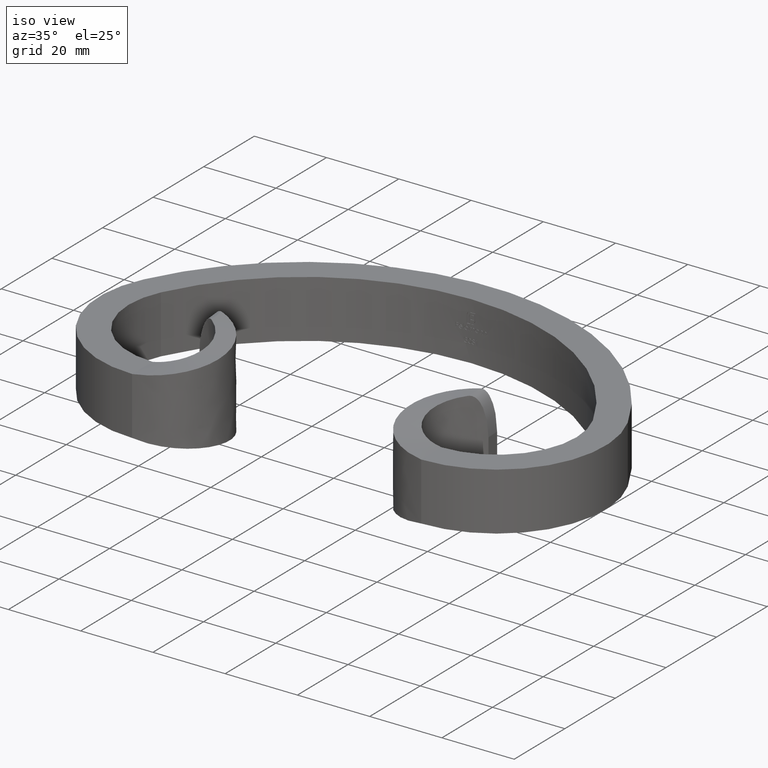
[diagram: clean part render]
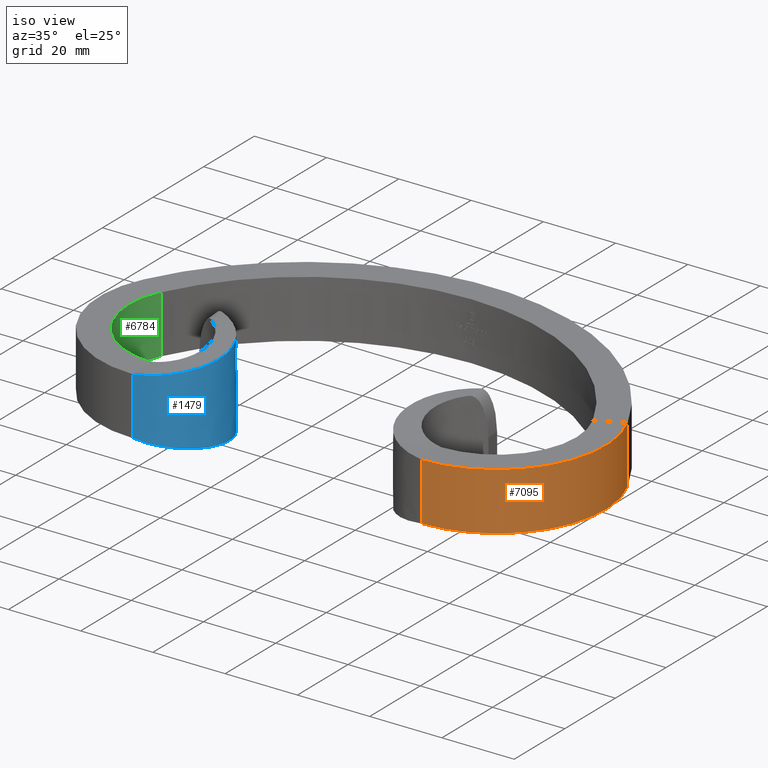
[diagram: same view with three faces highlighted in distinct colors, each labeled with its STEP entity id]
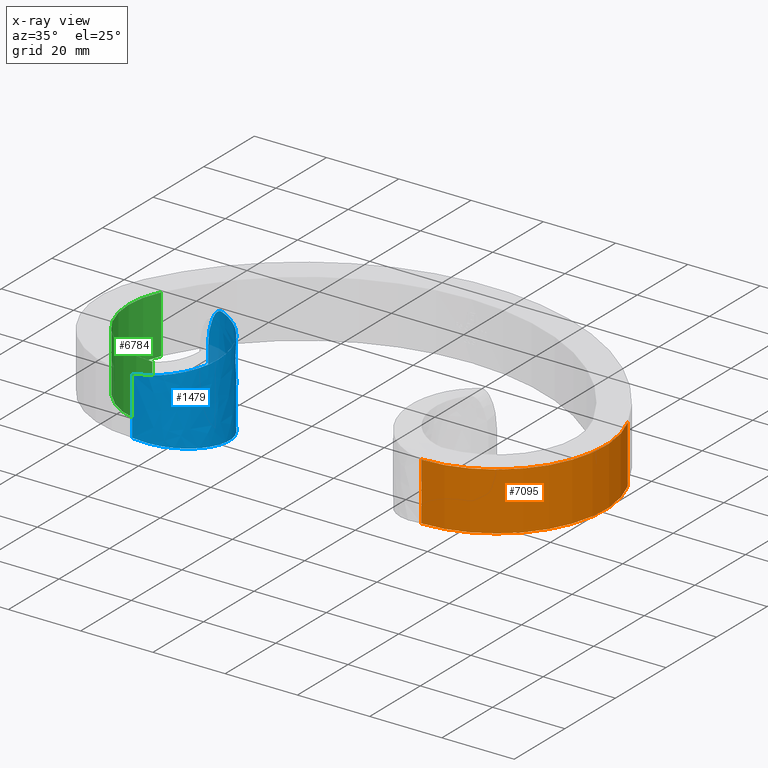
[diagram: x-ray of the same camera — body ghosted, the three highlighted faces saturated]
A machine part, iso view with three faces highlighted in distinct colors.
The next image is the same camera in x-ray (body ghosted, the three faces saturated) — at least one of them is partly hidden behind the body in this view.
Their STEP definitions:

[orange] entity #7095 — the highlighted cylindrical surface (partial cylindrical patch) has radius 30 mm, axis along (0, 0, 1).
#165 = CARTESIAN_POINT ( 'NONE',  ( 40.00000000000000000, -12.49999999999998934, -8.000000000000000000 ) ) ;
#647 = CARTESIAN_POINT ( 'NONE',  ( 40.00000000000000000, -42.49999999999998579, 8.000000000000000000 ) ) ;
#659 = EDGE_CURVE ( 'NONE', #9697, #1022, #10536, .T. ) ;
#697 = AXIS2_PLACEMENT_3D ( 'NONE', #1120, #1082, #5688 ) ;
#1022 = VERTEX_POINT ( 'NONE', #7930 ) ;
#1064 = DIRECTION ( 'NONE',  ( -0.000000000000000000, 0.000000000000000000, -1.000000000000000000 ) ) ;
#1082 = DIRECTION ( 'NONE',  ( 0.000000000000000000, 0.000000000000000000, 1.000000000000000000 ) ) ;
#1084 = DIRECTION ( 'NONE',  ( 0.000000000000000000, -1.000000000000000000, 0.000000000000000000 ) ) ;
#1120 = CARTESIAN_POINT ( 'NONE',  ( 40.00000000000000000, -12.49999999999998934, 8.000000000000000000 ) ) ;
#1778 = CYLINDRICAL_SURFACE ( 'NONE', #2584, 30.00000000000000711 ) ;
#2280 = CARTESIAN_POINT ( 'NONE',  ( 66.96629213483143417, 0.6460674157303912812, 8.000000000000000000 ) ) ;
#2584 = AXIS2_PLACEMENT_3D ( 'NONE', #10476, #3929, #7639 ) ;
#3466 = DIRECTION ( 'NONE',  ( 0.000000000000000000, 0.000000000000000000, -1.000000000000000000 ) ) ;
#3648 = VECTOR ( 'NONE', #1064, 1000.000000000000000 ) ;
#3929 = DIRECTION ( 'NONE',  ( 0.000000000000000000, 0.000000000000000000, 1.000000000000000000 ) ) ;
#4398 = CIRCLE ( 'NONE', #697, 30.00000000000000000 ) ;
#4993 = EDGE_CURVE ( 'NONE', #8564, #10380, #4398, .T. ) ;
#5571 = ORIENTED_EDGE ( 'NONE', *, *, #10774, .F. ) ;
#5688 = DIRECTION ( 'NONE',  ( 0.000000000000000000, -1.000000000000000000, 0.000000000000000000 ) ) ;
#5797 = CARTESIAN_POINT ( 'NONE',  ( 66.96629213483146259, 0.6460674157303981646, 8.000000000000000000 ) ) ;
#5848 = ORIENTED_EDGE ( 'NONE', *, *, #11000, .T. ) ;
#6629 = LINE ( 'NONE', #647, #10428 ) ;
#6748 = DIRECTION ( 'NONE',  ( 0.000000000000000000, 0.000000000000000000, 1.000000000000000000 ) ) ;
#7091 = AXIS2_PLACEMENT_3D ( 'NONE', #165, #6748, #1084 ) ;
#7095 = ADVANCED_FACE ( 'NONE', ( #9194 ), #1778, .T. ) ;
#7536 = CARTESIAN_POINT ( 'NONE',  ( 40.00000000000001421, -42.50000000000000711, -8.000000000000000000 ) ) ;
#7607 = ORIENTED_EDGE ( 'NONE', *, *, #659, .T. ) ;
#7639 = DIRECTION ( 'NONE',  ( 1.000000000000000000, 0.000000000000000000, 0.000000000000000000 ) ) ;
#7930 = CARTESIAN_POINT ( 'NONE',  ( 66.96629213483143417, 0.6460674157303912812, -8.000000000000000000 ) ) ;
#8092 = LINE ( 'NONE', #5797, #3648 ) ;
#8366 = ORIENTED_EDGE ( 'NONE', *, *, #4993, .F. ) ;
#8564 = VERTEX_POINT ( 'NONE', #9182 ) ;
#9182 = CARTESIAN_POINT ( 'NONE',  ( 40.00000000000001421, -42.50000000000000711, 8.000000000000000000 ) ) ;
#9194 = FACE_OUTER_BOUND ( 'NONE', #10834, .T. ) ;
#9697 = VERTEX_POINT ( 'NONE', #7536 ) ;
#10380 = VERTEX_POINT ( 'NONE', #2280 ) ;
#10428 = VECTOR ( 'NONE', #3466, 1000.000000000000000 ) ;
#10476 = CARTESIAN_POINT ( 'NONE',  ( 40.00000000000000000, -12.49999999999998934, 0.000000000000000000 ) ) ;
#10536 = CIRCLE ( 'NONE', #7091, 30.00000000000000000 ) ;
#10774 = EDGE_CURVE ( 'NONE', #10380, #1022, #8092, .T. ) ;
#10834 = EDGE_LOOP ( 'NONE', ( #7607, #5571, #8366, #5848 ) ) ;
#11000 = EDGE_CURVE ( 'NONE', #8564, #9697, #6629, .T. ) ;

[blue] entity #1479 — the highlighted face is a freeform B-spline surface patch.
#107 = CARTESIAN_POINT ( 'NONE',  ( -39.27207681396834005, -12.54270505401797564, 9.165432682719297119 ) ) ;
#115 = ORIENTED_EDGE ( 'NONE', *, *, #10227, .F. ) ;
#154 = CARTESIAN_POINT ( 'NONE',  ( -36.04298409383513047, -42.19489507003635964, 8.503882915511125518 ) ) ;
#156 = CARTESIAN_POINT ( 'NONE',  ( -32.38241363854125154, -40.60731167138313680, 9.004700799622668228 ) ) ;
#233 = CARTESIAN_POINT ( 'NONE',  ( -39.01710257286399042, -12.55518140007928096, 13.87492381433971111 ) ) ;
#273 = CARTESIAN_POINT ( 'NONE',  ( -38.68746648217916118, -42.39879736232403928, 8.167136860540608723 ) ) ;
#353 = ORIENTED_EDGE ( 'NONE', *, *, #12014, .T. ) ;
#610 = CARTESIAN_POINT ( 'NONE',  ( -37.08296777396621025, -12.78451269173868354, -13.08431619962141923 ) ) ;
#625 = CARTESIAN_POINT ( 'NONE',  ( -39.99999999999997158, -12.50000000000004974, -3.545507529709388983 ) ) ;
#652 = VERTEX_POINT ( 'NONE', #8571 ) ;
#708 = ORIENTED_EDGE ( 'NONE', *, *, #1569, .F. ) ;
#821 = CARTESIAN_POINT ( 'NONE',  ( -39.22967689592027796, -12.54542734868240750, -9.312656470867501923 ) ) ;
#918 = CARTESIAN_POINT ( 'NONE',  ( -39.08791007744836321, -12.55454230699907292, 9.803116106269754937 ) ) ;
#958 = CARTESIAN_POINT ( 'NONE',  ( -39.84310123269413850, -12.50882673381324928, 6.228628696777295914 ) ) ;
#964 = FACE_OUTER_BOUND ( 'NONE', #3219, .T. ) ;
#990 = CARTESIAN_POINT ( 'NONE',  ( -37.54936792720159389, -12.70850219665680925, 12.66884928609257699 ) ) ;
#995 = CARTESIAN_POINT ( 'NONE',  ( -25.19733021883143920, -24.53388138580784528, 11.37779541540063377 ) ) ;
#1074 = CARTESIAN_POINT ( 'NONE',  ( -37.20958304122586213, -12.76213995514962818, 12.98698473583742086 ) ) ;
#1077 = CARTESIAN_POINT ( 'NONE',  ( -36.04298409383513047, -42.19489507003635964, -8.503882915511125518 ) ) ;
#1081 = CARTESIAN_POINT ( 'NONE',  ( -39.99999999999999289, -42.50000000000000711, 8.000000000000000000 ) ) ;
#1117 = CARTESIAN_POINT ( 'NONE',  ( -38.68746648217916118, -42.39879736232403928, -8.167136860540608723 ) ) ;
#1370 = CARTESIAN_POINT ( 'NONE',  ( -37.81987464068800620, -12.67199776784917553, -12.34924817626349380 ) ) ;
#1463 = CARTESIAN_POINT ( 'NONE',  ( -31.62695320964726520, -14.93357274144184998, -12.87747321097610431 ) ) ;
#1479 = ADVANCED_FACE ( 'NONE', ( #964 ), #4584, .T. ) ;
#1569 = EDGE_CURVE ( 'NONE', #9248, #5418, #12149, .T. ) ;
#1613 = CARTESIAN_POINT ( 'NONE',  ( -39.09332678598790523, -12.55442119161753389, -9.756807381089018349 ) ) ;
#1674 = DIRECTION ( 'NONE',  ( 0.000000000000000000, 0.000000000000000000, -1.000000000000000000 ) ) ;
#1747 = CARTESIAN_POINT ( 'NONE',  ( -39.72620574013895123, -12.51546731632451070, -7.075722399542910601 ) ) ;
#1766 = CARTESIAN_POINT ( 'NONE',  ( -38.12320101079868095, -12.63712534223304296, 11.90576084904062526 ) ) ;
#1847 = CARTESIAN_POINT ( 'NONE',  ( -39.25254712213869368, -12.54395475111382119, 9.233830524082700109 ) ) ;
#1882 = CARTESIAN_POINT ( 'NONE',  ( -39.82484287883275442, -12.50985915749215316, 6.377425288388678837 ) ) ;
#1929 = CARTESIAN_POINT ( 'NONE',  ( -26.84580894462402512, -35.05877054887470479, 10.00383071811035052 ) ) ;
#1958 = LINE ( 'NONE', #11962, #4142 ) ;
#1966 = CARTESIAN_POINT ( 'NONE',  ( -32.38241363854125154, -40.60731167138313680, -9.004700799622668228 ) ) ;
#1999 = CARTESIAN_POINT ( 'NONE',  ( -37.14300965967410662, -12.77375008803218925, 13.03940881678186159 ) ) ;
#2479 = CARTESIAN_POINT ( 'NONE',  ( -37.03467687075512060, -12.79336771986923260, -13.11887199366248247 ) ) ;
#2567 = CARTESIAN_POINT ( 'NONE',  ( -38.52089944301228996, -12.59781801681586799, -11.21398455636612823 ) ) ;
#2610 = CARTESIAN_POINT ( 'NONE',  ( -38.08384311854948834, -12.64139012473959767, -11.96762546062084098 ) ) ;
#2656 = CARTESIAN_POINT ( 'NONE',  ( -39.99999999999997158, -12.50000000000004974, -3.545507529709388983 ) ) ;
#2812 = CARTESIAN_POINT ( 'NONE',  ( -38.19610040620212033, -12.62942142424697067, 11.78767851683378964 ) ) ;
#2884 = CARTESIAN_POINT ( 'NONE',  ( -38.62716495409629403, -12.58928020137935810, 10.96860529115071259 ) ) ;
#2887 = CARTESIAN_POINT ( 'NONE',  ( -31.62695320964726520, -14.93357274144184998, -12.87747321097610431 ) ) ;
#2922 = CARTESIAN_POINT ( 'NONE',  ( -35.79395304520880927, -13.09240974463900642, 13.45737794553265232 ) ) ;
#2925 = CARTESIAN_POINT ( 'NONE',  ( -29.25184079106775314, -38.21318353949611435, 9.503446292758994218 ) ) ;
#2962 = CARTESIAN_POINT ( 'NONE',  ( -37.17289245020715782, -12.76849885976178101, 13.01620609464272249 ) ) ;
#3007 = CARTESIAN_POINT ( 'NONE',  ( -31.62695320964726520, -14.93357274144184998, 12.87747321097610431 ) ) ;
#3046 = CARTESIAN_POINT ( 'NONE',  ( -35.79395304520880927, -13.09240974463900642, 13.45737794553265232 ) ) ;
#3219 = EDGE_LOOP ( 'NONE', ( #353, #6838, #708, #12024, #115, #8425 ) ) ;
#3317 = CARTESIAN_POINT ( 'NONE',  ( -38.68746648217916118, -42.39879736232403928, -8.167136860540608723 ) ) ;
#3321 = EDGE_CURVE ( 'NONE', #11998, #3361, #1958, .T. ) ;
#3361 = VERTEX_POINT ( 'NONE', #5678 ) ;
#3402 = CARTESIAN_POINT ( 'NONE',  ( -25.33521997203124698, -31.39402598544253209, -10.50442781793251612 ) ) ;
#3421 = B_SPLINE_CURVE_WITH_KNOTS ( 'NONE', 3,
 ( #1081, #273, #8643, #156, #3922, #6828, #5898, #10506, #7827, #5769, #9622, #4959, #6743, #10545, #8603, #3046 ),
 .UNSPECIFIED., .F., .F.,
 ( 4, 1, 1, 1, 1, 1, 1, 1, 1, 1, 1, 1, 1, 4 ),
 ( 0.000000000000000000, 0.07643944691584819706, 0.1540096069160411529, 0.2330094117785480312, 0.3131500124201943014, 0.3945330707136094905, 0.4773147407482481452, 0.5401686603511797191, 0.6038891507428142402, 0.6681790321241890540, 0.7333217182116463784, 0.7990563422923470105, 0.8656197462576271651, 0.9027524825840476108 ),
 .UNSPECIFIED. ) ;
#3534 = CARTESIAN_POINT ( 'NONE',  ( -39.99999999999997158, -12.50000000000004974, 3.545507528706613787 ) ) ;
#3557 = CARTESIAN_POINT ( 'NONE',  ( -39.16489303077967321, -12.54965441920337810, -9.528904954137521699 ) ) ;
#3663 = CARTESIAN_POINT ( 'NONE',  ( -39.39476787363866350, -12.53502907559230550, 8.706968697925150380 ) ) ;
#3701 = CARTESIAN_POINT ( 'NONE',  ( -39.29905651576576275, -12.54099010925896529, 9.069264073676590598 ) ) ;
#3737 = CARTESIAN_POINT ( 'NONE',  ( -37.28264335321186707, -12.74977236196472852, 12.92630355501677286 ) ) ;
#3814 = CARTESIAN_POINT ( 'NONE',  ( -38.37130600904811928, -12.61208654868661938, 11.48021962690854281 ) ) ;
#3919 = CARTESIAN_POINT ( 'NONE',  ( -40.00000000000001421, -42.50000000000000711, -8.000000000000000000 ) ) ;
#3922 = CARTESIAN_POINT ( 'NONE',  ( -29.25184079106775314, -38.21318353949611435, 9.503446292758994218 ) ) ;
#4047 = B_SPLINE_CURVE_WITH_KNOTS ( 'NONE', 3,
 ( #8884, #3317, #9942, #11917, #10908, #9088, #3402, #11796, #8959, #4238, #11837, #9044, #1463, #7284, #5251, #6230 ),
 .UNSPECIFIED., .F., .F.,
 ( 4, 1, 1, 1, 1, 1, 1, 1, 1, 1, 1, 1, 1, 4 ),
 ( 0.000000000000000000, 0.07643944691584819706, 0.1540096069160411529, 0.2330094117785480312, 0.3131500124201943014, 0.3945330707136094905, 0.4773147407482481452, 0.5401686603511797191, 0.6038891507428142402, 0.6681790321241889430, 0.7333217182116463784, 0.7990563422923470105, 0.8656197462576271651, 0.9027524826645606515 ),
 .UNSPECIFIED. ) ;
#4142 = VECTOR ( 'NONE', #1674, 1000.000000000000000 ) ;
#4238 = CARTESIAN_POINT ( 'NONE',  ( -26.05590940528936272, -21.71262454500754302, -11.75140612995421208 ) ) ;
#4285 = B_SPLINE_CURVE_WITH_KNOTS ( 'NONE', 3,
 ( #3534, #4450, #10384, #4741, #11331, #958, #9394, #1882, #4625, #8559, #11219, #10314, #5680, #3663, #6665, #3701, #107, #7627, #1847, #9500, #11362, #918, #8485, #2884, #4664, #3814, #8521, #2812, #11256, #1766, #10420, #9428, #6700, #8401, #9349, #6584, #990, #4583, #5562, #3737, #1074, #2962, #11478, #11398, #1999, #9695, #9536, #2922 ),
 .UNSPECIFIED., .F., .F.,
 ( 4, 1, 1, 1, 1, 2, 2, 2, 2, 1, 1, 1, 1, 2, 2, 2, 2, 1, 1, 1, 1, 1, 2, 2, 2, 2, 1, 1, 1, 2, 2, 4 ),
 ( 0.000000000000000000, 0.1249999999999713840, 0.1874999999999571176, 0.2187499999999502065, 0.2343749999999466260, 0.2421874999999447109, 0.2499999999999428235, 0.3749999999999078515, 0.4374999999998903655, 0.4687499999998818168, 0.4843749999998773204, 0.4921874999998753220, 0.4960937499998745448, 0.4980468749998736566, 0.4999999999998727684, 0.6249999999998553379, 0.6874999999998463451, 0.7187499999998421263, 0.7343749999998395728, 0.7421874999998382405, 0.7460937499998377964, 0.7480468749998377964, 0.7490234374998381295, 0.7499999999998383515, 0.8124999999998812061, 0.8437499999999020783, 0.8593749999999132916, 0.8671874999999182876, 0.8710937499999201750, 0.8730468749999211742, 0.8749999999999221734, 1.000000000000000000 ),
 .UNSPECIFIED. ) ;
#4366 = B_SPLINE_CURVE_WITH_KNOTS ( 'NONE', 3,
 ( #5189, #5274, #5148, #7140, #11858, #6252, #2479, #610, #7060, #7225, #8078, #10973, #5313, #6093, #1370, #8006, #7104, #8380, #11058, #11105, #2610, #11944, #11145, #2567, #5356, #7312, #11013, #1613, #3557, #9282, #5448, #4563, #821, #6296, #7450, #5491, #12028, #6476, #1747, #7268, #10253, #12071, #6431, #10164, #6346, #8238, #2656 ),
 .UNSPECIFIED., .F., .F.,
 ( 4, 2, 1, 1, 1, 1, 2, 2, 2, 1, 1, 1, 1, 1, 2, 2, 2, 2, 1, 1, 1, 1, 2, 2, 2, 2, 1, 1, 2, 2, 4 ),
 ( 0.000000000000000000, 0.06249999999997299382, 0.09374999999995943523, 0.1093749999999525241, 0.1171874999999496930, 0.1210937499999489436, 0.1230468749999485828, 0.1249999999999482359, 0.1874999999999284184, 0.2187499999999185096, 0.2343749999999134026, 0.2421874999999114875, 0.2460937499999111266, 0.2480468749999112099, 0.2490234374999114042, 0.2499999999999116262, 0.3749999999999341083, 0.4374999999999452105, 0.4687499999999510947, 0.4843749999999540368, 0.4921874999999553135, 0.4960937499999554801, 0.4980468749999553690, 0.4999999999999552580, 0.6249999999999664713, 0.6874999999999723554, 0.7187499999999754641, 0.7343749999999770184, 0.7421874999999775735, 0.7499999999999782396, 1.000000000000000000 ),
 .UNSPECIFIED. ) ;
#4450 = CARTESIAN_POINT ( 'NONE',  ( -39.99999999999997868, -12.50000000000005151, 4.032928411699945315 ) ) ;
#4563 = CARTESIAN_POINT ( 'NONE',  ( -39.22474835846300323, -12.54574620258149587, -9.329442633327010626 ) ) ;
#4583 = CARTESIAN_POINT ( 'NONE',  ( -37.46810401687444170, -12.72042704787037870, 12.75359946062644845 ) ) ;
#4584 = B_SPLINE_SURFACE_WITH_KNOTS ( 'NONE', 1, 3, ( 
 ( #4830, #10543, #154, #9465, #2925, #1929, #6782, #10426, #995, #9539, #4870, #10503, #3007, #11438, #6740, #233, #9620 ),
 ( #3919, #1117, #1077, #1966, #7663, #8640, #4746, #11481, #5807, #5850, #7704, #6827, #2887, #5767, #11333, #9504, #7599 ) ),
 .UNSPECIFIED., .F., .F., .F.,
 ( 2, 2 ),
 ( 4, 1, 1, 1, 1, 1, 1, 1, 1, 1, 1, 1, 1, 1, 4 ),
 ( 0.000000000000000000, 1.000000000000000000 ),
 ( 0.000000000000000000, 0.07643944691584819706, 0.1540096069160411529, 0.2330094117785480312, 0.3131500124201943014, 0.3945330707136094905, 0.4773147407482481452, 0.5401686603511797191, 0.6038891507428142402, 0.6681790321241890540, 0.7333217182116463784, 0.7990563422923470105, 0.8656197462576271651, 0.9328260272710567902, 1.000000000000000000 ),
 .UNSPECIFIED. ) ;
#4625 = CARTESIAN_POINT ( 'NONE',  ( -39.82132681482517000, -12.51005811880680518, 6.405360764965210230 ) ) ;
#4664 = CARTESIAN_POINT ( 'NONE',  ( -38.52734701551829488, -12.59772658353637809, 11.18035873388561718 ) ) ;
#4741 = CARTESIAN_POINT ( 'NONE',  ( -39.91054606329805665, -12.50502421543277443, 5.601592000936509663 ) ) ;
#4746 = CARTESIAN_POINT ( 'NONE',  ( -25.33521997203124698, -31.39402598544253209, -10.50442781793251612 ) ) ;
#4830 = CARTESIAN_POINT ( 'NONE',  ( -40.00000000000001421, -42.50000000000000711, 8.000000000000000000 ) ) ;
#4870 = CARTESIAN_POINT ( 'NONE',  ( -27.45806106993893536, -19.09484801626853567, 12.12772151566155543 ) ) ;
#4959 = CARTESIAN_POINT ( 'NONE',  ( -29.33266354703817314, -16.81741441169711138, 12.50148243620112432 ) ) ;
#5077 = DIRECTION ( 'NONE',  ( 0.000000000000000000, 0.000000000000000000, -1.000000000000000000 ) ) ;
#5148 = CARTESIAN_POINT ( 'NONE',  ( -36.24297803145210395, -12.96663927766264912, -13.46865966283492533 ) ) ;
#5189 = CARTESIAN_POINT ( 'NONE',  ( -35.79395304840073067, -13.09240974387990519, -13.45737794795262765 ) ) ;
#5251 = CARTESIAN_POINT ( 'NONE',  ( -35.27376873677720681, -13.24552783197744610, -13.38836232621635425 ) ) ;
#5274 = CARTESIAN_POINT ( 'NONE',  ( -36.01891194307402344, -13.02619226069722558, -13.48720801419950810 ) ) ;
#5313 = CARTESIAN_POINT ( 'NONE',  ( -37.46223298166179916, -12.72064496283585200, -12.76730743732041873 ) ) ;
#5356 = CARTESIAN_POINT ( 'NONE',  ( -38.80757764989092351, -12.57488187157228765, -10.54789356168117997 ) ) ;
#5418 = VERTEX_POINT ( 'NONE', #625 ) ;
#5448 = CARTESIAN_POINT ( 'NONE',  ( -39.21734304177829955, -12.54622589925154408, -9.354587291487659328 ) ) ;
#5491 = CARTESIAN_POINT ( 'NONE',  ( -39.47541436111473701, -12.53007725156073704, -8.399073866821213485 ) ) ;
#5562 = CARTESIAN_POINT ( 'NONE',  ( -37.34471276807575890, -12.73975094189840007, 12.87044823233538260 ) ) ;
#5678 = CARTESIAN_POINT ( 'NONE',  ( -40.00000000000001421, -42.50000000000000711, -8.000000000000000000 ) ) ;
#5680 = CARTESIAN_POINT ( 'NONE',  ( -39.47790584728439001, -12.52996484017938883, 8.366674763841714935 ) ) ;
#5758 = EDGE_CURVE ( 'NONE', #652, #5418, #4366, .T. ) ;
#5767 = CARTESIAN_POINT ( 'NONE',  ( -34.23629465016007600, -13.55430790121540419, -13.25192717049105617 ) ) ;
#5769 = CARTESIAN_POINT ( 'NONE',  ( -26.05590940528936272, -21.71262454500754302, 11.75140612995420675 ) ) ;
#5807 = CARTESIAN_POINT ( 'NONE',  ( -25.19733021883143920, -24.53388138580784528, -11.37779541540063555 ) ) ;
#5850 = CARTESIAN_POINT ( 'NONE',  ( -26.05590940528936272, -21.71262454500754302, -11.75140612995421208 ) ) ;
#5898 = CARTESIAN_POINT ( 'NONE',  ( -25.33521997203124698, -31.39402598544253209, 10.50442781793250546 ) ) ;
#6093 = CARTESIAN_POINT ( 'NONE',  ( -37.70165741727253561, -12.68739557918303085, -12.49541238195640780 ) ) ;
#6230 = CARTESIAN_POINT ( 'NONE',  ( -35.79395304840073067, -13.09240974387990519, -13.45737794795262765 ) ) ;
#6252 = CARTESIAN_POINT ( 'NONE',  ( -36.93798888738058395, -12.81163643882692149, -13.18387473200895954 ) ) ;
#6296 = CARTESIAN_POINT ( 'NONE',  ( -39.23258949070273616, -12.54523919297762546, -9.302701216793883177 ) ) ;
#6346 = CARTESIAN_POINT ( 'NONE',  ( -39.93863496977117222, -12.50341542069381262, -5.493065830738886213 ) ) ;
#6421 = CARTESIAN_POINT ( 'NONE',  ( -35.79395304520880927, -13.09240974463900642, 13.45737794553265232 ) ) ;
#6431 = CARTESIAN_POINT ( 'NONE',  ( -39.80767790698469355, -12.51083109698739193, -6.511126166072076060 ) ) ;
#6476 = CARTESIAN_POINT ( 'NONE',  ( -39.66530259384889945, -12.51896180625985622, -7.444922996221879252 ) ) ;
#6584 = CARTESIAN_POINT ( 'NONE',  ( -37.79009997743666815, -12.67520410249578156, 12.39393724077262782 ) ) ;
#6665 = CARTESIAN_POINT ( 'NONE',  ( -39.35175669208071270, -12.53767745020807389, 8.875497403616405379 ) ) ;
#6700 = CARTESIAN_POINT ( 'NONE',  ( -38.10218519521033187, -12.63939293393537611, 11.93896470527093001 ) ) ;
#6740 = CARTESIAN_POINT ( 'NONE',  ( -37.05083497999392250, -12.66557074052261100, 13.62471128583585589 ) ) ;
#6743 = CARTESIAN_POINT ( 'NONE',  ( -31.62695320964726520, -14.93357274144184998, 12.87747321097610431 ) ) ;
#6782 = CARTESIAN_POINT ( 'NONE',  ( -25.33521997203124698, -31.39402598544253209, 10.50442781793250546 ) ) ;
#6827 = CARTESIAN_POINT ( 'NONE',  ( -29.33266354703817314, -16.81741441169711138, -12.50148243620112964 ) ) ;
#6828 = CARTESIAN_POINT ( 'NONE',  ( -26.84580894462402512, -35.05877054887470479, 10.00383071811035052 ) ) ;
#6838 = ORIENTED_EDGE ( 'NONE', *, *, #5758, .T. ) ;
#6888 = VECTOR ( 'NONE', #5077, 1000.000000000000000 ) ;
#7060 = CARTESIAN_POINT ( 'NONE',  ( -37.10365237163338037, -12.78077726549475024, -13.06906585758433437 ) ) ;
#7104 = CARTESIAN_POINT ( 'NONE',  ( -38.02207724641301212, -12.64823826266464835, -12.06200927340752926 ) ) ;
#7140 = CARTESIAN_POINT ( 'NONE',  ( -36.57740238471313887, -12.88745993982160698, -13.36686799825164051 ) ) ;
#7225 = CARTESIAN_POINT ( 'NONE',  ( -37.11743952312761508, -12.77830004844230238, -13.05880097150541808 ) ) ;
#7268 = CARTESIAN_POINT ( 'NONE',  ( -39.75518447722687654, -12.51381228913597887, -6.889504974275915572 ) ) ;
#7284 = CARTESIAN_POINT ( 'NONE',  ( -33.84295905467941878, -13.76222011570481563, -13.19548148313901592 ) ) ;
#7312 = CARTESIAN_POINT ( 'NONE',  ( -38.89892911420402299, -12.56807852146068605, -10.31403360396063640 ) ) ;
#7450 = CARTESIAN_POINT ( 'NONE',  ( -39.36281253742459540, -12.53683558126588515, -8.856444165989227457 ) ) ;
#7459 = EDGE_CURVE ( 'NONE', #9248, #8211, #4285, .T. ) ;
#7599 = CARTESIAN_POINT ( 'NONE',  ( -39.99999999999997158, -12.50000000000004974, -14.00000000000000000 ) ) ;
#7627 = CARTESIAN_POINT ( 'NONE',  ( -39.25842962526160562, -12.54357755791090057, 9.213338034705312651 ) ) ;
#7663 = CARTESIAN_POINT ( 'NONE',  ( -29.25184079106775314, -38.21318353949611435, -9.503446292758999547 ) ) ;
#7704 = CARTESIAN_POINT ( 'NONE',  ( -27.45806106993893536, -19.09484801626853567, -12.12772151566153234 ) ) ;
#7827 = CARTESIAN_POINT ( 'NONE',  ( -25.19733021883143920, -24.53388138580784528, 11.37779541540063377 ) ) ;
#7869 = CARTESIAN_POINT ( 'NONE',  ( -39.99999999999997158, -12.50000000000004974, 14.00000000000000000 ) ) ;
#8006 = CARTESIAN_POINT ( 'NONE',  ( -37.95512529840168270, -12.65587441759502951, -12.16075678085686995 ) ) ;
#8078 = CARTESIAN_POINT ( 'NONE',  ( -37.12599139505945800, -12.77677282360894040, -13.05235985871252957 ) ) ;
#8211 = VERTEX_POINT ( 'NONE', #6421 ) ;
#8238 = CARTESIAN_POINT ( 'NONE',  ( -39.99999999999998579, -12.50000000000005684, -4.524116576691994851 ) ) ;
#8380 = CARTESIAN_POINT ( 'NONE',  ( -38.05538413791528995, -12.64452232027054457, -12.01150881398292647 ) ) ;
#8401 = CARTESIAN_POINT ( 'NONE',  ( -38.10105192120714435, -12.63951571672182084, 11.94074642449734469 ) ) ;
#8425 = ORIENTED_EDGE ( 'NONE', *, *, #3321, .T. ) ;
#8485 = CARTESIAN_POINT ( 'NONE',  ( -38.91384058506524468, -12.56645828138529986, 10.29777621971425106 ) ) ;
#8521 = CARTESIAN_POINT ( 'NONE',  ( -38.29170730431957992, -12.61969098982732795, 11.62570812584715618 ) ) ;
#8559 = CARTESIAN_POINT ( 'NONE',  ( -39.75269797945888683, -12.51394378841986033, 6.941290466344721466 ) ) ;
#8571 = CARTESIAN_POINT ( 'NONE',  ( -35.79395304840073067, -13.09240974387990519, -13.45737794795262765 ) ) ;
#8603 = CARTESIAN_POINT ( 'NONE',  ( -35.27376873455536099, -13.24552783277979984, 13.38836232591683562 ) ) ;
#8640 = CARTESIAN_POINT ( 'NONE',  ( -26.84580894462402512, -35.05877054887470479, -10.00383071811032387 ) ) ;
#8643 = CARTESIAN_POINT ( 'NONE',  ( -36.04298409383513047, -42.19489507003635964, 8.503882915511125518 ) ) ;
#8884 = CARTESIAN_POINT ( 'NONE',  ( -40.00000000000001421, -42.50000000000000711, -8.000000000000000000 ) ) ;
#8906 = CARTESIAN_POINT ( 'NONE',  ( -39.99999999999997158, -12.50000000000004974, 3.545507528706613787 ) ) ;
#8959 = CARTESIAN_POINT ( 'NONE',  ( -25.19733021883143920, -24.53388138580784528, -11.37779541540063555 ) ) ;
#9044 = CARTESIAN_POINT ( 'NONE',  ( -29.33266354703817314, -16.81741441169711138, -12.50148243620112964 ) ) ;
#9088 = CARTESIAN_POINT ( 'NONE',  ( -26.84580894462402512, -35.05877054887470479, -10.00383071811032387 ) ) ;
#9248 = VERTEX_POINT ( 'NONE', #8906 ) ;
#9282 = CARTESIAN_POINT ( 'NONE',  ( -39.19997641055348936, -12.54735518589474985, -9.413016044652813719 ) ) ;
#9349 = CARTESIAN_POINT ( 'NONE',  ( -37.94650630188353091, -12.65629502835115616, 12.18311131227316224 ) ) ;
#9394 = CARTESIAN_POINT ( 'NONE',  ( -39.83221756768280386, -12.50944203242712227, 6.317923148806293021 ) ) ;
#9428 = CARTESIAN_POINT ( 'NONE',  ( -38.10569305928282091, -12.63901311086506674, 11.93344563872554609 ) ) ;
#9465 = CARTESIAN_POINT ( 'NONE',  ( -32.38241363854125154, -40.60731167138313680, 9.004700799622668228 ) ) ;
#9500 = CARTESIAN_POINT ( 'NONE',  ( -39.24861796355603616, -12.54420694309844286, 9.247483652537148657 ) ) ;
#9504 = CARTESIAN_POINT ( 'NONE',  ( -39.01710257286399042, -12.55518140007928096, -13.87492381433971111 ) ) ;
#9536 = CARTESIAN_POINT ( 'NONE',  ( -36.24561663954999347, -12.95946089418260172, 13.51727810841144972 ) ) ;
#9539 = CARTESIAN_POINT ( 'NONE',  ( -26.05590940528936272, -21.71262454500754302, 11.75140612995420675 ) ) ;
#9620 = CARTESIAN_POINT ( 'NONE',  ( -39.99999999999997158, -12.50000000000004974, 14.00000000000000000 ) ) ;
#9622 = CARTESIAN_POINT ( 'NONE',  ( -27.45806106993893536, -19.09484801626853567, 12.12772151566155543 ) ) ;
#9695 = CARTESIAN_POINT ( 'NONE',  ( -36.69357708399068230, -12.85349044683327691, 13.38216029516694761 ) ) ;
#9942 = CARTESIAN_POINT ( 'NONE',  ( -36.04298409383513047, -42.19489507003635964, -8.503882915511125518 ) ) ;
#10164 = CARTESIAN_POINT ( 'NONE',  ( -39.81209067389649192, -12.51058108861735718, -6.477346913145993312 ) ) ;
#10227 = EDGE_CURVE ( 'NONE', #11998, #8211, #3421, .T. ) ;
#10253 = CARTESIAN_POINT ( 'NONE',  ( -39.78641453993386534, -12.51203704308820441, -6.669443938483938794 ) ) ;
#10314 = CARTESIAN_POINT ( 'NONE',  ( -39.52948510561549256, -12.52689752248779342, 8.135496484662748884 ) ) ;
#10384 = CARTESIAN_POINT ( 'NONE',  ( -39.97716048628416274, -12.50128156513581601, 4.760517687018443134 ) ) ;
#10420 = CARTESIAN_POINT ( 'NONE',  ( -38.11095182026698325, -12.63844447761279710, 11.92515838204166378 ) ) ;
#10426 = CARTESIAN_POINT ( 'NONE',  ( -24.87033295036835412, -27.80776863644313579, 10.96081425774909412 ) ) ;
#10503 = CARTESIAN_POINT ( 'NONE',  ( -29.33266354703817314, -16.81741441169711138, 12.50148243620112432 ) ) ;
#10506 = CARTESIAN_POINT ( 'NONE',  ( -24.87033295036835412, -27.80776863644313579, 10.96081425774909412 ) ) ;
#10543 = CARTESIAN_POINT ( 'NONE',  ( -38.68746648217916118, -42.39879736232403928, 8.167136860540608723 ) ) ;
#10545 = CARTESIAN_POINT ( 'NONE',  ( -33.84295905362638024, -13.76222011626143704, 13.19548148298789947 ) ) ;
#10908 = CARTESIAN_POINT ( 'NONE',  ( -29.25184079106775314, -38.21318353949611435, -9.503446292758999547 ) ) ;
#10973 = CARTESIAN_POINT ( 'NONE',  ( -37.29862764363734584, -12.74606910539725924, -12.92132388309128288 ) ) ;
#11013 = CARTESIAN_POINT ( 'NONE',  ( -39.02958865492652762, -12.55881556868095927, -9.945505562976014957 ) ) ;
#11058 = CARTESIAN_POINT ( 'NONE',  ( -38.07199522292805227, -12.64268936401584931, -11.98597675364690396 ) ) ;
#11105 = CARTESIAN_POINT ( 'NONE',  ( -38.07910517251351479, -12.64190911671005857, -11.97497403340813982 ) ) ;
#11145 = CARTESIAN_POINT ( 'NONE',  ( -38.31293327895576084, -12.61638704596340688, -11.61071110215885049 ) ) ;
#11219 = CARTESIAN_POINT ( 'NONE',  ( -39.67266235376570194, -12.51849338027793301, 7.429191661842211580 ) ) ;
#11256 = CARTESIAN_POINT ( 'NONE',  ( -38.14761433795013090, -12.63451750388796313, 11.86672335891857522 ) ) ;
#11331 = CARTESIAN_POINT ( 'NONE',  ( -39.86724781730806910, -12.50746343809094263, 6.019989298051045878 ) ) ;
#11333 = CARTESIAN_POINT ( 'NONE',  ( -37.05083497999392250, -12.66557074052261100, -13.62471128583585589 ) ) ;
#11362 = CARTESIAN_POINT ( 'NONE',  ( -39.24712706271797202, -12.54430269982584534, 9.252655355775466717 ) ) ;
#11398 = CARTESIAN_POINT ( 'NONE',  ( -37.14662017757818546, -12.77311313790712077, 13.03662581859466485 ) ) ;
#11438 = CARTESIAN_POINT ( 'NONE',  ( -34.23629465016007600, -13.55430790121540419, 13.25192717049105617 ) ) ;
#11478 = CARTESIAN_POINT ( 'NONE',  ( -37.15713364738677882, -12.77126229055880202, 13.02848987228446020 ) ) ;
#11481 = CARTESIAN_POINT ( 'NONE',  ( -24.87033295036835412, -27.80776863644313579, -10.96081425774909057 ) ) ;
#11567 = CARTESIAN_POINT ( 'NONE',  ( -39.99999999999999289, -42.50000000000000711, 8.000000000000000000 ) ) ;
#11796 = CARTESIAN_POINT ( 'NONE',  ( -24.87033295036835412, -27.80776863644313579, -10.96081425774909057 ) ) ;
#11837 = CARTESIAN_POINT ( 'NONE',  ( -27.45806106993893536, -19.09484801626853567, -12.12772151566153234 ) ) ;
#11858 = CARTESIAN_POINT ( 'NONE',  ( -36.74419631649088558, -12.85040653565126867, -13.29748079219577583 ) ) ;
#11917 = CARTESIAN_POINT ( 'NONE',  ( -32.38241363854125154, -40.60731167138313680, -9.004700799622668228 ) ) ;
#11944 = CARTESIAN_POINT ( 'NONE',  ( -38.08682525817268782, -12.64106418473792459, -11.96298757334384710 ) ) ;
#11962 = CARTESIAN_POINT ( 'NONE',  ( -40.00000000000000000, -42.50000000000000711, 8.000000000000000000 ) ) ;
#11998 = VERTEX_POINT ( 'NONE', #11567 ) ;
#12014 = EDGE_CURVE ( 'NONE', #3361, #652, #4047, .T. ) ;
#12024 = ORIENTED_EDGE ( 'NONE', *, *, #7459, .T. ) ;
#12028 = CARTESIAN_POINT ( 'NONE',  ( -39.62077276827413641, -12.52153642898332464, -7.686744082606804085 ) ) ;
#12071 = CARTESIAN_POINT ( 'NONE',  ( -39.79924624597666849, -12.51130911792432876, -6.574532984714385186 ) ) ;
#12149 = LINE ( 'NONE', #7869, #6888 ) ;

[green] entity #6784 — the highlighted cylindrical surface (partial cylindrical patch) has radius 22 mm, axis along (0, 0, 1).
#623 = VECTOR ( 'NONE', #5211, 1000.000000000000000 ) ;
#648 = CARTESIAN_POINT ( 'NONE',  ( -59.77528089887640306, -2.859550561797725265, -8.000000000000001776 ) ) ;
#700 = EDGE_CURVE ( 'NONE', #9341, #10444, #8054, .T. ) ;
#1232 = EDGE_CURVE ( 'NONE', #11109, #11227, #7023, .T. ) ;
#2214 = CARTESIAN_POINT ( 'NONE',  ( -40.00000000000000000, -12.49999999999999822, -8.000000000000001776 ) ) ;
#2411 = DIRECTION ( 'NONE',  ( 0.000000000000000000, 0.000000000000000000, 1.000000000000000000 ) ) ;
#2491 = CARTESIAN_POINT ( 'NONE',  ( -39.99999999999999289, -34.50000000000000711, -8.000000000000001776 ) ) ;
#2503 = DIRECTION ( 'NONE',  ( 1.000000000000000000, 0.000000000000000000, 0.000000000000000000 ) ) ;
#2965 = ORIENTED_EDGE ( 'NONE', *, *, #8620, .T. ) ;
#2983 = CARTESIAN_POINT ( 'NONE',  ( -59.77528089887640306, -2.859550561797725265, 8.000000000000001776 ) ) ;
#3099 = DIRECTION ( 'NONE',  ( 0.000000000000000000, 0.000000000000000000, 1.000000000000000000 ) ) ;
#3708 = CYLINDRICAL_SURFACE ( 'NONE', #10026, 22.00000000000001421 ) ;
#4037 = EDGE_LOOP ( 'NONE', ( #10394, #10848, #2965, #4187 ) ) ;
#4187 = ORIENTED_EDGE ( 'NONE', *, *, #1232, .T. ) ;
#5211 = DIRECTION ( 'NONE',  ( 0.000000000000000000, -0.000000000000000000, 1.000000000000000000 ) ) ;
#5256 = CARTESIAN_POINT ( 'NONE',  ( -59.77528089887641727, -2.859550561797707946, 8.000000000000001776 ) ) ;
#5374 = AXIS2_PLACEMENT_3D ( 'NONE', #2214, #3099, #9827 ) ;
#6196 = VECTOR ( 'NONE', #8358, 1000.000000000000000 ) ;
#6228 = LINE ( 'NONE', #8059, #623 ) ;
#6742 = EDGE_CURVE ( 'NONE', #10444, #11227, #6228, .T. ) ;
#6784 = ADVANCED_FACE ( 'NONE', ( #10353 ), #3708, .F. ) ;
#6808 = LINE ( 'NONE', #5256, #6196 ) ;
#7023 = CIRCLE ( 'NONE', #7955, 22.00000000000001066 ) ;
#7263 = DIRECTION ( 'NONE',  ( 0.000000000000000000, 0.000000000000000000, 1.000000000000000000 ) ) ;
#7447 = DIRECTION ( 'NONE',  ( -0.8988764044943818865, 0.4382022471910118067, 0.000000000000000000 ) ) ;
#7955 = AXIS2_PLACEMENT_3D ( 'NONE', #10083, #7263, #7447 ) ;
#7992 = CARTESIAN_POINT ( 'NONE',  ( -39.99999999999999289, -34.50000000000000711, 8.000000000000001776 ) ) ;
#8054 = CIRCLE ( 'NONE', #5374, 22.00000000000001066 ) ;
#8059 = CARTESIAN_POINT ( 'NONE',  ( -40.00000000000000000, -34.50000000000000711, 8.000000000000001776 ) ) ;
#8098 = CARTESIAN_POINT ( 'NONE',  ( -40.00000000000000000, -12.49999999999999822, 0.000000000000000000 ) ) ;
#8358 = DIRECTION ( 'NONE',  ( 0.000000000000000000, 0.000000000000000000, 1.000000000000000000 ) ) ;
#8620 = EDGE_CURVE ( 'NONE', #9341, #11109, #6808, .T. ) ;
#9341 = VERTEX_POINT ( 'NONE', #648 ) ;
#9827 = DIRECTION ( 'NONE',  ( -0.8988764044943818865, 0.4382022471910118067, 0.000000000000000000 ) ) ;
#10026 = AXIS2_PLACEMENT_3D ( 'NONE', #8098, #2411, #2503 ) ;
#10083 = CARTESIAN_POINT ( 'NONE',  ( -40.00000000000000000, -12.49999999999999822, 8.000000000000001776 ) ) ;
#10353 = FACE_OUTER_BOUND ( 'NONE', #4037, .T. ) ;
#10394 = ORIENTED_EDGE ( 'NONE', *, *, #6742, .F. ) ;
#10444 = VERTEX_POINT ( 'NONE', #2491 ) ;
#10848 = ORIENTED_EDGE ( 'NONE', *, *, #700, .F. ) ;
#11109 = VERTEX_POINT ( 'NONE', #2983 ) ;
#11227 = VERTEX_POINT ( 'NONE', #7992 ) ;